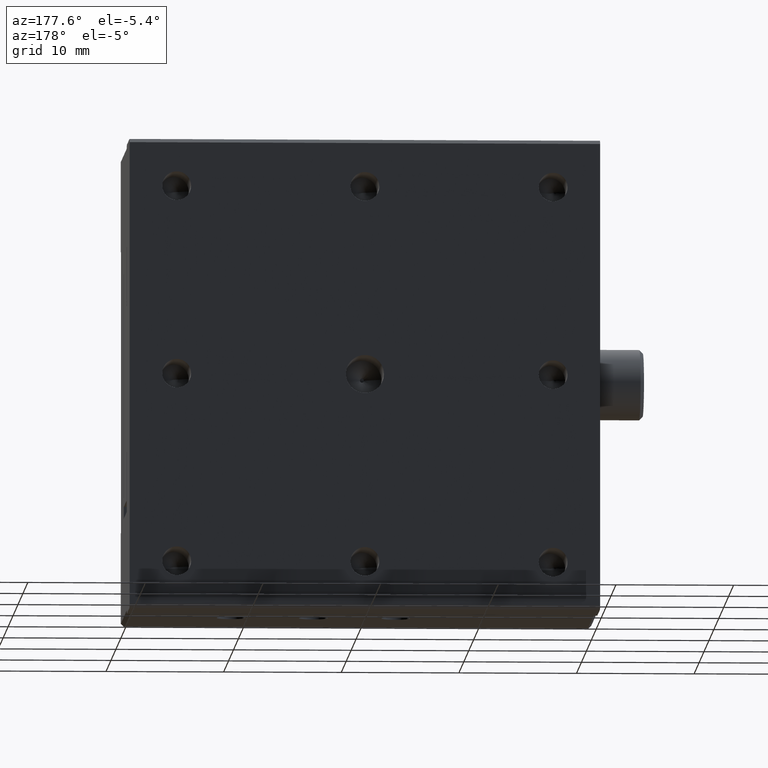
[diagram: clean part render]
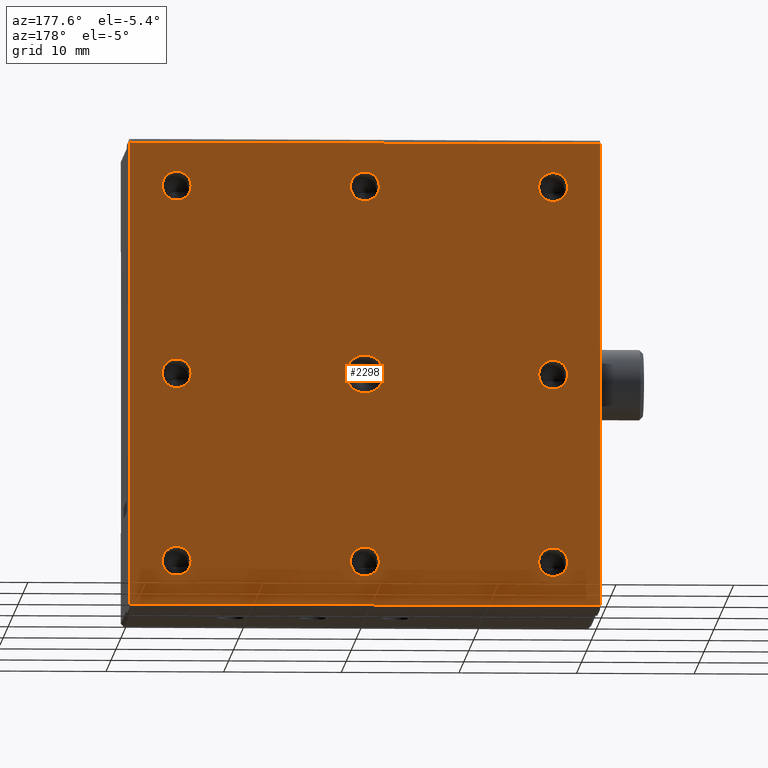
[diagram: same view with one face highlighted and labeled with its STEP entity id]
A machine part, auxiliary view. The second image highlights one B-rep face of the part: STEP entity #2298.
In plain terms, the highlighted planar face has unit normal (0, 1, 0).
Its self-contained STEP definition (entity closure, byte-faithful):
#54 = CARTESIAN_POINT ( 'NONE',  ( 34.77049999999999841, 18.00000000000000355, 4.000000000000000000 ) ) ;
#75 = AXIS2_PLACEMENT_3D ( 'NONE', #961, #2557, #2859 ) ;
#81 = VERTEX_POINT ( 'NONE', #1299 ) ;
#210 = FACE_OUTER_BOUND ( 'NONE', #283, .T. ) ;
#221 = DIRECTION ( 'NONE',  ( -1.175826439999350046E-15, -1.000000000000000000, -0.000000000000000000 ) ) ;
#222 = CARTESIAN_POINT ( 'NONE',  ( 40.00000000000000000, 18.00000000000002842, 39.70000000000000284 ) ) ;
#254 = FACE_BOUND ( 'NONE', #4526, .T. ) ;
#257 = VECTOR ( 'NONE', #3376, 1000.000000000000000 ) ;
#283 = EDGE_LOOP ( 'NONE', ( #4239, #5100, #2624, #3114 ) ) ;
#285 = CIRCLE ( 'NONE', #5097, 1.229499999999999593 ) ;
#293 = EDGE_LOOP ( 'NONE', ( #3213 ) ) ;
#312 = EDGE_CURVE ( 'NONE', #1087, #1087, #1992, .T. ) ;
#373 = CARTESIAN_POINT ( 'NONE',  ( 3.999999999999993339, 18.00000000000000355, 20.00000000000000000 ) ) ;
#497 = VECTOR ( 'NONE', #2057, 1000.000000000000000 ) ;
#552 = EDGE_LOOP ( 'NONE', ( #4408 ) ) ;
#592 = DIRECTION ( 'NONE',  ( -0.000000000000000000, -0.000000000000000000, -1.000000000000000000 ) ) ;
#638 = EDGE_CURVE ( 'NONE', #3080, #3080, #3550, .T. ) ;
#640 = DIRECTION ( 'NONE',  ( -1.000000000000000000, 0.000000000000000000, 0.000000000000000000 ) ) ;
#693 = FACE_BOUND ( 'NONE', #4938, .T. ) ;
#757 = VERTEX_POINT ( 'NONE', #3156 ) ;
#778 = CIRCLE ( 'NONE', #4425, 1.229500000000008253 ) ;
#789 = VERTEX_POINT ( 'NONE', #1135 ) ;
#911 = CIRCLE ( 'NONE', #75, 1.229499999999999593 ) ;
#961 = CARTESIAN_POINT ( 'NONE',  ( 3.999999999999993339, 18.00000000000000355, 4.000000000000000000 ) ) ;
#1025 = CIRCLE ( 'NONE', #2687, 1.229500000000008253 ) ;
#1087 = VERTEX_POINT ( 'NONE', #4248 ) ;
#1114 = EDGE_LOOP ( 'NONE', ( #2997 ) ) ;
#1122 = CARTESIAN_POINT ( 'NONE',  ( 40.00000000000000000, 18.00000000000001776, 39.69999999999999574 ) ) ;
#1123 = VECTOR ( 'NONE', #2407, 1000.000000000000000 ) ;
#1135 = CARTESIAN_POINT ( 'NONE',  ( 5.229499999999992710, 18.00000000000000355, 4.000000000000000000 ) ) ;
#1189 = VECTOR ( 'NONE', #592, 1000.000000000000000 ) ;
#1211 = CIRCLE ( 'NONE', #3691, 1.229500000000008253 ) ;
#1268 = CARTESIAN_POINT ( 'NONE',  ( 20.00000000000000000, 18.00000000000000355, 4.000000000000000000 ) ) ;
#1270 = VERTEX_POINT ( 'NONE', #4504 ) ;
#1299 = CARTESIAN_POINT ( 'NONE',  ( 21.62100000000000222, 18.00000000000000355, 20.00000000000000000 ) ) ;
#1317 = CARTESIAN_POINT ( 'NONE',  ( 20.00000000000000000, 18.00000000000000355, 36.00000000000000711 ) ) ;
#1460 = CARTESIAN_POINT ( 'NONE',  ( 0.000000000000000000, 18.00000000000002842, 0.3000000000000090372 ) ) ;
#1506 = ORIENTED_EDGE ( 'NONE', *, *, #638, .T. ) ;
#1618 = EDGE_CURVE ( 'NONE', #2422, #2422, #285, .T. ) ;
#1689 = VERTEX_POINT ( 'NONE', #2441 ) ;
#1724 = DIRECTION ( 'NONE',  ( -1.000000000000000000, 0.000000000000000000, 0.000000000000000000 ) ) ;
#1802 = VERTEX_POINT ( 'NONE', #1122 ) ;
#1822 = DIRECTION ( 'NONE',  ( -1.000000000000000000, 0.000000000000000000, 0.000000000000000000 ) ) ;
#1838 = DIRECTION ( 'NONE',  ( -1.000000000000000000, 0.000000000000000000, 0.000000000000000000 ) ) ;
#1904 = FACE_BOUND ( 'NONE', #552, .T. ) ;
#1943 = CIRCLE ( 'NONE', #3013, 1.229500000000001370 ) ;
#1969 = DIRECTION ( 'NONE',  ( 1.175826439999350046E-15, -1.000000000000000000, 0.000000000000000000 ) ) ;
#1976 = VERTEX_POINT ( 'NONE', #5075 ) ;
#1992 = CIRCLE ( 'NONE', #4143, 1.229500000000001370 ) ;
#2017 = LINE ( 'NONE', #3680, #1123 ) ;
#2057 = DIRECTION ( 'NONE',  ( 1.000000000000000000, -0.000000000000000000, -0.000000000000000000 ) ) ;
#2128 = DIRECTION ( 'NONE',  ( 1.000000000000000000, 0.000000000000000000, 0.000000000000000000 ) ) ;
#2199 = DIRECTION ( 'NONE',  ( -1.175826439999350046E-15, -1.000000000000000000, -0.000000000000000000 ) ) ;
#2215 = AXIS2_PLACEMENT_3D ( 'NONE', #4587, #2285, #4923 ) ;
#2231 = EDGE_CURVE ( 'NONE', #1976, #1976, #1943, .T. ) ;
#2255 = FACE_BOUND ( 'NONE', #4375, .T. ) ;
#2285 = DIRECTION ( 'NONE',  ( 0.000000000000000000, -1.000000000000000000, 0.000000000000000000 ) ) ;
#2298 = ADVANCED_FACE ( 'NONE', ( #210, #2255, #254, #4579, #3815, #5016, #2713, #693, #1904, #5042 ), #4238, .T. ) ;
#2379 = AXIS2_PLACEMENT_3D ( 'NONE', #5090, #3792, #2992 ) ;
#2407 = DIRECTION ( 'NONE',  ( 0.000000000000000000, 0.000000000000000000, 1.000000000000000000 ) ) ;
#2422 = VERTEX_POINT ( 'NONE', #5124 ) ;
#2441 = CARTESIAN_POINT ( 'NONE',  ( -5.204170427930421283E-15, 18.00000000000002487, 39.69999999999999574 ) ) ;
#2490 = EDGE_CURVE ( 'NONE', #3066, #2529, #5060, .T. ) ;
#2529 = VERTEX_POINT ( 'NONE', #1460 ) ;
#2557 = DIRECTION ( 'NONE',  ( 1.175826439999350046E-15, -1.000000000000000000, 0.000000000000000000 ) ) ;
#2624 = ORIENTED_EDGE ( 'NONE', *, *, #5019, .T. ) ;
#2647 = CARTESIAN_POINT ( 'NONE',  ( 36.00000000000000711, 18.00000000000000355, 36.00000000000000711 ) ) ;
#2669 = DIRECTION ( 'NONE',  ( -1.175826439999350046E-15, -1.000000000000000000, -0.000000000000000000 ) ) ;
#2687 = AXIS2_PLACEMENT_3D ( 'NONE', #2647, #2199, #1822 ) ;
#2705 = CARTESIAN_POINT ( 'NONE',  ( 40.00000000000000000, 18.00000000000002842, 0.3000000000000085931 ) ) ;
#2713 = FACE_BOUND ( 'NONE', #1114, .T. ) ;
#2723 = AXIS2_PLACEMENT_3D ( 'NONE', #3834, #4066, #2128 ) ;
#2775 = DIRECTION ( 'NONE',  ( -1.175826439999350046E-15, -1.000000000000000000, -0.000000000000000000 ) ) ;
#2779 = ORIENTED_EDGE ( 'NONE', *, *, #3774, .T. ) ;
#2856 = EDGE_CURVE ( 'NONE', #1802, #3066, #4542, .T. ) ;
#2859 = DIRECTION ( 'NONE',  ( 1.000000000000000000, 0.000000000000000000, 0.000000000000000000 ) ) ;
#2893 = DIRECTION ( 'NONE',  ( -1.175826439999350046E-15, -1.000000000000000000, -0.000000000000000000 ) ) ;
#2992 = DIRECTION ( 'NONE',  ( -1.000000000000000000, 0.000000000000000000, 0.000000000000000000 ) ) ;
#2997 = ORIENTED_EDGE ( 'NONE', *, *, #1618, .T. ) ;
#3013 = AXIS2_PLACEMENT_3D ( 'NONE', #1317, #2893, #1724 ) ;
#3066 = VERTEX_POINT ( 'NONE', #3807 ) ;
#3073 = EDGE_CURVE ( 'NONE', #757, #757, #1025, .T. ) ;
#3080 = VERTEX_POINT ( 'NONE', #4666 ) ;
#3114 = ORIENTED_EDGE ( 'NONE', *, *, #3616, .T. ) ;
#3123 = ORIENTED_EDGE ( 'NONE', *, *, #2231, .T. ) ;
#3156 = CARTESIAN_POINT ( 'NONE',  ( 34.77049999999999841, 18.00000000000000355, 36.00000000000000711 ) ) ;
#3213 = ORIENTED_EDGE ( 'NONE', *, *, #5070, .T. ) ;
#3376 = DIRECTION ( 'NONE',  ( -1.000000000000000000, 0.000000000000000000, 0.000000000000000000 ) ) ;
#3550 = CIRCLE ( 'NONE', #2723, 1.229499999999999593 ) ;
#3595 = LINE ( 'NONE', #3622, #497 ) ;
#3616 = EDGE_CURVE ( 'NONE', #1689, #1802, #3595, .T. ) ;
#3622 = CARTESIAN_POINT ( 'NONE',  ( 40.00000000000000000, 18.00000000000002842, 39.70000000000000284 ) ) ;
#3624 = DIRECTION ( 'NONE',  ( -1.000000000000000000, 0.000000000000000000, 0.000000000000000000 ) ) ;
#3680 = CARTESIAN_POINT ( 'NONE',  ( 0.000000000000000000, 18.00000000000002842, 39.70000000000000284 ) ) ;
#3691 = AXIS2_PLACEMENT_3D ( 'NONE', #4640, #2669, #1838 ) ;
#3774 = EDGE_CURVE ( 'NONE', #789, #789, #911, .T. ) ;
#3792 = DIRECTION ( 'NONE',  ( 0.000000000000000000, 1.000000000000000000, 0.000000000000000000 ) ) ;
#3807 = CARTESIAN_POINT ( 'NONE',  ( 40.00000000000000000, 18.00000000000002842, 0.3000000000000090372 ) ) ;
#3815 = FACE_BOUND ( 'NONE', #4159, .T. ) ;
#3834 = CARTESIAN_POINT ( 'NONE',  ( 3.999999999999993339, 18.00000000000000355, 36.00000000000000711 ) ) ;
#4005 = ORIENTED_EDGE ( 'NONE', *, *, #3073, .T. ) ;
#4066 = DIRECTION ( 'NONE',  ( 1.175826439999350046E-15, -1.000000000000000000, 0.000000000000000000 ) ) ;
#4094 = VERTEX_POINT ( 'NONE', #54 ) ;
#4143 = AXIS2_PLACEMENT_3D ( 'NONE', #1268, #2775, #3624 ) ;
#4159 = EDGE_LOOP ( 'NONE', ( #4005 ) ) ;
#4238 = PLANE ( 'NONE',  #2379 ) ;
#4239 = ORIENTED_EDGE ( 'NONE', *, *, #2856, .T. ) ;
#4248 = CARTESIAN_POINT ( 'NONE',  ( 18.77049999999999841, 18.00000000000000355, 4.000000000000000000 ) ) ;
#4272 = EDGE_LOOP ( 'NONE', ( #2779 ) ) ;
#4312 = EDGE_CURVE ( 'NONE', #81, #81, #4851, .T. ) ;
#4325 = EDGE_LOOP ( 'NONE', ( #3123 ) ) ;
#4331 = EDGE_CURVE ( 'NONE', #4094, #4094, #1211, .T. ) ;
#4359 = ORIENTED_EDGE ( 'NONE', *, *, #4312, .T. ) ;
#4375 = EDGE_LOOP ( 'NONE', ( #4359 ) ) ;
#4408 = ORIENTED_EDGE ( 'NONE', *, *, #312, .T. ) ;
#4425 = AXIS2_PLACEMENT_3D ( 'NONE', #4952, #221, #640 ) ;
#4504 = CARTESIAN_POINT ( 'NONE',  ( 34.77049999999999841, 18.00000000000000355, 20.00000000000000000 ) ) ;
#4526 = EDGE_LOOP ( 'NONE', ( #1506 ) ) ;
#4542 = LINE ( 'NONE', #222, #1189 ) ;
#4579 = FACE_BOUND ( 'NONE', #4325, .T. ) ;
#4587 = CARTESIAN_POINT ( 'NONE',  ( 20.00000000000000000, 18.00000000000000355, 20.00000000000000000 ) ) ;
#4640 = CARTESIAN_POINT ( 'NONE',  ( 36.00000000000000711, 18.00000000000000355, 4.000000000000000000 ) ) ;
#4666 = CARTESIAN_POINT ( 'NONE',  ( 5.229499999999992710, 18.00000000000000355, 36.00000000000000711 ) ) ;
#4851 = CIRCLE ( 'NONE', #2215, 1.621000000000000885 ) ;
#4923 = DIRECTION ( 'NONE',  ( 1.000000000000000000, 0.000000000000000000, 0.000000000000000000 ) ) ;
#4938 = EDGE_LOOP ( 'NONE', ( #4998 ) ) ;
#4952 = CARTESIAN_POINT ( 'NONE',  ( 36.00000000000000711, 18.00000000000000355, 20.00000000000000000 ) ) ;
#4998 = ORIENTED_EDGE ( 'NONE', *, *, #4331, .T. ) ;
#5016 = FACE_BOUND ( 'NONE', #293, .T. ) ;
#5019 = EDGE_CURVE ( 'NONE', #2529, #1689, #2017, .T. ) ;
#5042 = FACE_BOUND ( 'NONE', #4272, .T. ) ;
#5060 = LINE ( 'NONE', #2705, #257 ) ;
#5070 = EDGE_CURVE ( 'NONE', #1270, #1270, #778, .T. ) ;
#5075 = CARTESIAN_POINT ( 'NONE',  ( 18.77049999999999841, 18.00000000000000355, 36.00000000000000711 ) ) ;
#5090 = CARTESIAN_POINT ( 'NONE',  ( 40.00000000000000000, 18.00000000000002842, 39.70000000000000284 ) ) ;
#5097 = AXIS2_PLACEMENT_3D ( 'NONE', #373, #1969, #5118 ) ;
#5100 = ORIENTED_EDGE ( 'NONE', *, *, #2490, .T. ) ;
#5118 = DIRECTION ( 'NONE',  ( 1.000000000000000000, 0.000000000000000000, 0.000000000000000000 ) ) ;
#5124 = CARTESIAN_POINT ( 'NONE',  ( 5.229499999999992710, 18.00000000000000355, 20.00000000000000000 ) ) ;